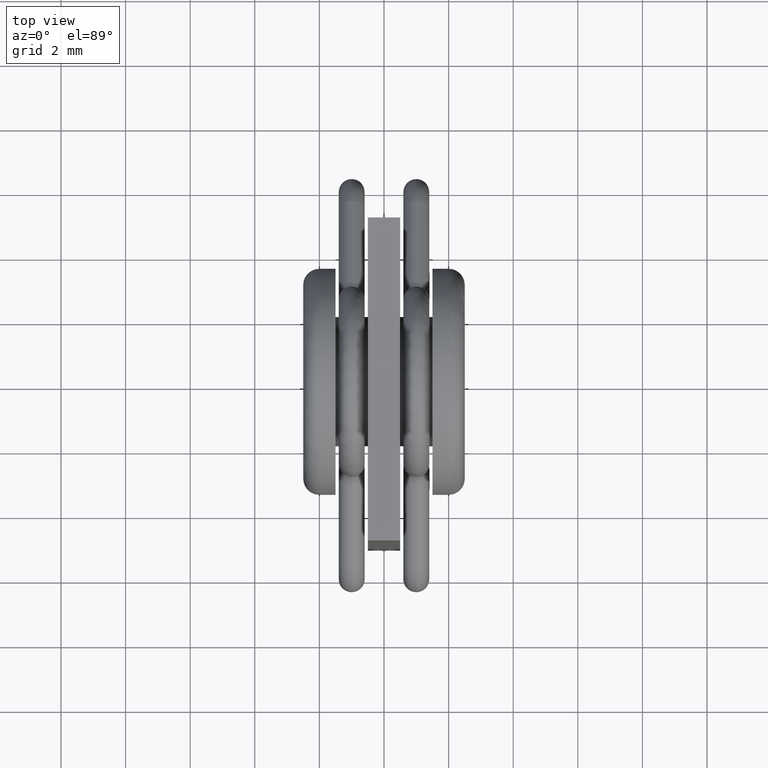
[diagram: clean part render]
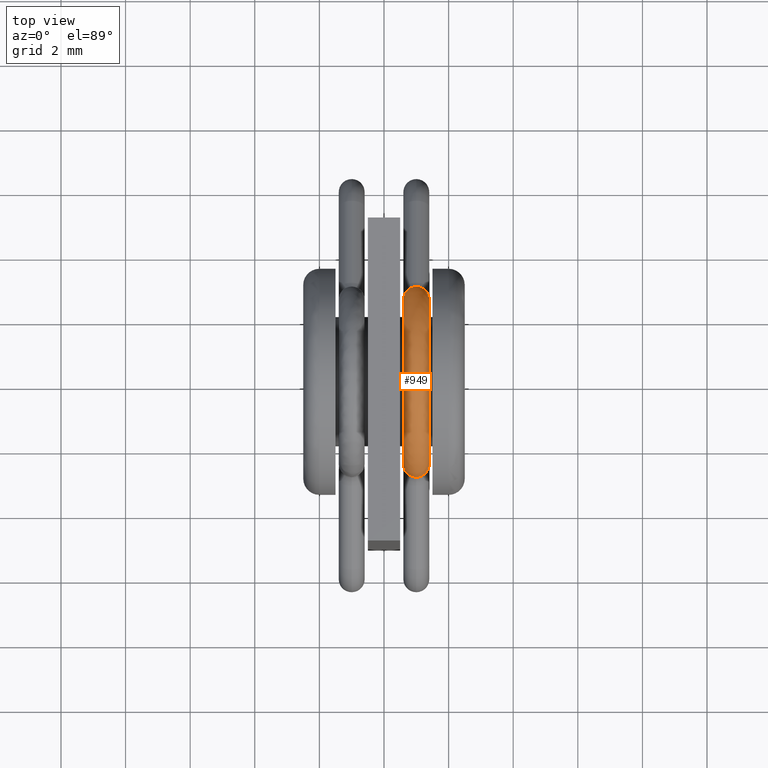
[diagram: same view with one face highlighted and labeled with its STEP entity id]
A machine part, top view. The second image highlights one B-rep face of the part: STEP entity #949.
In plain terms, the highlighted face is a freeform B-spline surface patch.
Its self-contained STEP definition (entity closure, byte-faithful):
#7 = CARTESIAN_POINT ( 'NONE',  ( 0.6000000000000010880, -1.693923247754989925, 13.45414849027615922 ) ) ;
#10 = B_SPLINE_CURVE_WITH_KNOTS ( 'NONE', 3,
 ( #2619, #1861, #913, #1659, #1383, #453 ),
 .UNSPECIFIED., .F., .F.,
 ( 4, 2, 4 ),
 ( 0.0006284202095626171278, 0.0009467790735410146642, 0.001265137937519412309 ),
 .UNSPECIFIED. ) ;
#22 = CARTESIAN_POINT ( 'NONE',  ( 0.5999999999999996447, 2.550000000000001155, 12.78414580212309026 ) ) ;
#40 = CARTESIAN_POINT ( 'NONE',  ( 0.5999999999999990896, 3.350000000000000977, 12.85609720141527923 ) ) ;
#46 = CARTESIAN_POINT ( 'NONE',  ( 1.399999999999999467, 2.227823959846286783, 14.28480567347927810 ) ) ;
#50 = CARTESIAN_POINT ( 'NONE',  ( 1.399999999999999467, 3.350000000000001865, 12.78414580212309204 ) ) ;
#59 = CARTESIAN_POINT ( 'NONE',  ( 1.399999999999999467, 2.545879930339979058, 13.16724665663082128 ) ) ;
#64 = CARTESIAN_POINT ( 'NONE',  ( 1.399999999999999467, 3.350000000000001865, 12.85609720141527923 ) ) ;
#84 = CARTESIAN_POINT ( 'NONE',  ( 0.6000000000000013101, -2.419553885554791783, 13.82226230502519648 ) ) ;
#91 = VERTEX_POINT ( 'NONE', #266 ) ;
#94 = CARTESIAN_POINT ( 'NONE',  ( 1.400000000000001243, -2.468288161014429605, 13.66175922868801251 ) ) ;
#98 = CARTESIAN_POINT ( 'NONE',  ( 1.400000000000001465, -3.242653074273759373, 13.86936996709986758 ) ) ;
#113 = CARTESIAN_POINT ( 'NONE',  ( 1.399999999999999467, 2.227823959846286783, 14.28480567347927810 ) ) ;
#129 = CARTESIAN_POINT ( 'NONE',  ( 0.6000000000000011990, -2.517196728838235753, 13.41615929504404825 ) ) ;
#131 = CARTESIAN_POINT ( 'NONE',  ( 1.399999999999999467, 2.550000000000002043, 12.85609720141527745 ) ) ;
#134 = CARTESIAN_POINT ( 'NONE',  ( 1.400000000000001243, -2.550007053976341975, 12.92804881173416121 ) ) ;
#176 = CARTESIAN_POINT ( 'NONE',  ( 0.5999999999999998668, 2.039149600807544260, 14.56709498333606234 ) ) ;
#187 = CARTESIAN_POINT ( 'NONE',  ( 1.399999999999999467, 2.517196728838232200, 13.41615929504400206 ) ) ;
#196 = CARTESIAN_POINT ( 'NONE',  ( 0.7904648936802521897, 2.906426318762784788, 12.95308795530054091 ) ) ;
#200 = ORIENTED_EDGE ( 'NONE', *, *, #1354, .F. ) ;
#201 = CARTESIAN_POINT ( 'NONE',  ( 1.400000000000001243, -2.468288161014429605, 13.66175922868801251 ) ) ;
#214 = CARTESIAN_POINT ( 'NONE',  ( 1.400000000000001243, -1.750000000000001554, 12.85609720141538048 ) ) ;
#228 = CARTESIAN_POINT ( 'NONE',  ( 0.6000000000000000888, 1.747172501213720475, 13.11477711729562934 ) ) ;
#237 = ORIENTED_EDGE ( 'NONE', *, *, #780, .T. ) ;
#243 = CARTESIAN_POINT ( 'NONE',  ( 0.6000000000000000888, 1.528898795972921221, 13.88172938376019516 ) ) ;
#255 = CARTESIAN_POINT ( 'NONE',  ( 0.6000000000000013101, -1.750000000000001554, 12.85609720141538048 ) ) ;
#263 = CARTESIAN_POINT ( 'NONE',  ( 1.400000000000001243, -2.549991795886024981, 13.08368269480378210 ) ) ;
#266 = CARTESIAN_POINT ( 'NONE',  ( 1.400000000000001243, -2.550000000000001155, 13.00000000000000178 ) ) ;
#269 = CARTESIAN_POINT ( 'NONE',  ( 1.400000000000001243, -1.528898795973100411, 13.88172938376082932 ) ) ;
#283 = CARTESIAN_POINT ( 'NONE',  ( 0.5999999999999993117, 3.323040949056754734, 13.43810805060969393 ) ) ;
#299 = CARTESIAN_POINT ( 'NONE',  ( 0.6000000000000016431, -3.350000000000000977, 12.85609720141538048 ) ) ;
#308 = CARTESIAN_POINT ( 'NONE',  ( 1.400000000000000133, -0.6675863731872332396, 15.55000000000115712 ) ) ;
#313 = B_SPLINE_CURVE_WITH_KNOTS ( 'NONE', 3,
 ( #860, #2592, #408, #2540, #1829, #1388, #2068, #2350, #176, #2559, #3079, #1339, #2319, #663, #1643, #2603, #2370, #129, #3096, #2881, #709, #1688 ),
 .UNSPECIFIED., .F., .F.,
 ( 4, 2, 2, 2, 2, 2, 2, 2, 2, 2, 4 ),
 ( -3.703112690096296887E-15, 0.03124999999997413874, 0.06249999999995197592, 0.1249999999999076572, 0.2499999999998190336, 0.4999999999996417310, 0.7499999999994645394, 0.8749999999993758326, 0.9374999999993315347, 0.9687499999993094413, 0.9999999999992872368 ),
 .UNSPECIFIED. ) ;
#315 = CARTESIAN_POINT ( 'NONE',  ( 1.399999999999999467, 2.926749123719651902, 14.68788196319836459 ) ) ;
#330 = CARTESIAN_POINT ( 'NONE',  ( 1.400000000000001243, -2.419553885554790895, 13.82226230502519648 ) ) ;
#334 = CARTESIAN_POINT ( 'NONE',  ( 0.6000000000000010880, -2.678882808903880530, 15.05873262516628230 ) ) ;
#352 = B_SPLINE_CURVE_WITH_KNOTS ( 'NONE', 3,
 ( #526, #1054, #59, #1731, #2460, #2220, #2738, #46, #1997, #1743, #2958, #308, #1019, #558, #2504, #330, #94, #1068, #2989, #2441, #263, #2207 ),
 .UNSPECIFIED., .F., .F.,
 ( 4, 2, 2, 2, 2, 2, 2, 2, 2, 2, 4 ),
 ( -1.545224709151703387E-15, 0.03124999999999862957, 0.06249999999999879957, 0.1249999999999991535, 0.2499999999999998335, 0.5000000000000012212, 0.7500000000000026645, 0.8750000000000033307, 0.9375000000000036637, 0.9687500000000037748, 1.000000000000003997 ),
 .UNSPECIFIED. ) ;
#380 = CARTESIAN_POINT ( 'NONE',  ( 1.400000000000001021, -2.039149600807420359, 14.56709498333546016 ) ) ;
#386 = CARTESIAN_POINT ( 'NONE',  ( 0.6000000000000015321, -2.550000000001543032, 13.00000000000575717 ) ) ;
#395 = CARTESIAN_POINT ( 'NONE',  ( 1.399999999999999467, 2.545879930339978170, 13.16724665663082305 ) ) ;
#401 = CARTESIAN_POINT ( 'NONE',  ( 0.7909841653094126235, -2.906926518334151943, 12.95302211533492276 ) ) ;
#408 = CARTESIAN_POINT ( 'NONE',  ( 0.5999999999999997558, 2.545879930339978170, 13.16724665663081417 ) ) ;
#436 = CARTESIAN_POINT ( 'NONE',  ( 1.400000000000001021, -2.039149600807420359, 14.56709498333546016 ) ) ;
#450 = CARTESIAN_POINT ( 'NONE',  ( 0.5999999999999996447, 2.549991795886097368, 13.08368269480378920 ) ) ;
#453 = CARTESIAN_POINT ( 'NONE',  ( 1.400000000000001243, -2.550000000000001155, 13.00000000000000178 ) ) ;
#461 = CARTESIAN_POINT ( 'NONE',  ( 0.5999999999999998668, 1.331067674462010686, 15.27517690940495854 ) ) ;
#474 = CARTESIAN_POINT ( 'NONE',  ( 1.400000000000000133, -0.4581475110107751658, 14.75000000000115818 ) ) ;
#490 = CARTESIAN_POINT ( 'NONE',  ( 1.400000000000001243, -1.660478156753226076, 13.56429766031139117 ) ) ;
#503 = CARTESIAN_POINT ( 'NONE',  ( 0.5999999999999996447, 2.517196728838267727, 13.41615929504400206 ) ) ;
#513 = CARTESIAN_POINT ( 'NONE',  ( 0.6000000000000015321, -2.926749123719649237, 14.68788196319920125 ) ) ;
#526 = CARTESIAN_POINT ( 'NONE',  ( 1.399999999999999467, 2.550000000000009148, 13.00000000000001066 ) ) ;
#529 = B_SPLINE_CURVE_WITH_KNOTS ( 'NONE', 3,
 ( #2324, #1411, #2372, #196, #1819, #2778 ),
 .UNSPECIFIED., .F., .F.,
 ( 4, 2, 4 ),
 ( -7.861450877188101911E-06, 0.0003062086350299563875, 0.0006202787209371008565 ),
 .UNSPECIFIED. ) ;
#532 = CARTESIAN_POINT ( 'NONE',  ( 0.6000000000000016431, -3.350009266988511758, 12.91676238393189635 ) ) ;
#546 = CARTESIAN_POINT ( 'NONE',  ( 1.399999999999999467, 3.349989222046436232, 13.09680935352849573 ) ) ;
#558 = CARTESIAN_POINT ( 'NONE',  ( 1.400000000000001021, -2.039149600807420359, 14.56709498333546016 ) ) ;
#563 = CARTESIAN_POINT ( 'NONE',  ( 1.400000000000001465, -1.748657533117180529, 15.98895790059223998 ) ) ;
#584 = CARTESIAN_POINT ( 'NONE',  ( 0.6000000000000016431, -3.349989222046363402, 13.09680935352849929 ) ) ;
#603 = CARTESIAN_POINT ( 'NONE',  ( 1.399999999999999467, 2.550000000000002043, 12.85609720141527745 ) ) ;
#614 = CARTESIAN_POINT ( 'NONE',  ( 1.399999999999999467, 2.517196728838232200, 13.41615929504400206 ) ) ;
#651 = CARTESIAN_POINT ( 'NONE',  ( 1.400000000000001243, -2.227823959846338742, 14.28480567348001529 ) ) ;
#663 = CARTESIAN_POINT ( 'NONE',  ( 0.6000000000000009770, -2.039149600807421248, 14.56709498333545838 ) ) ;
#673 = CARTESIAN_POINT ( 'NONE',  ( 1.400000000000000133, -0.6675863731872332396, 15.55000000000115712 ) ) ;
#689 = CARTESIAN_POINT ( 'NONE',  ( 0.5999999999999996447, 2.550000000000001155, 12.85609720141527745 ) ) ;
#702 = CARTESIAN_POINT ( 'NONE',  ( 0.5999999999999999778, 1.727487951163527935, 13.28559951620664670 ) ) ;
#709 = CARTESIAN_POINT ( 'NONE',  ( 0.6000000000000014211, -2.549991795885837131, 13.08368269480761548 ) ) ;
#716 = CARTESIAN_POINT ( 'NONE',  ( 0.6000000000000000888, 1.660478156753322443, 13.56429766031170026 ) ) ;
#737 = CARTESIAN_POINT ( 'NONE',  ( 1.400000000000000133, 1.528898795972922331, 13.88172938376019516 ) ) ;
#753 = CARTESIAN_POINT ( 'NONE',  ( 1.400000000000000799, -1.693923247755098727, 13.45414849027615922 ) ) ;
#765 = CARTESIAN_POINT ( 'NONE',  ( 0.5999999999999994227, 1.748657533116964924, 15.98895790059101252 ) ) ;
#777 = CARTESIAN_POINT ( 'NONE',  ( 0.5999999999999993117, 2.926749123719651458, 14.68788196319836459 ) ) ;
#780 = EDGE_CURVE ( 'NONE', #2839, #2467, #313, .T. ) ;
#796 = CARTESIAN_POINT ( 'NONE',  ( 0.6000000000000004219, -0.6675863731872341278, 15.55000000000115712 ) ) ;
#813 = CARTESIAN_POINT ( 'NONE',  ( 1.400000000000000133, -0.8770252353636912579, 16.35000000000115605 ) ) ;
#827 = ORIENTED_EDGE ( 'NONE', *, *, #1915, .T. ) ;
#829 = CARTESIAN_POINT ( 'NONE',  ( 0.6000000000000015321, -3.344587359466212106, 13.21971619596604874 ) ) ;
#850 = CARTESIAN_POINT ( 'NONE',  ( 1.400000000000001243, -2.549991795886024537, 13.08368269480380164 ) ) ;
#860 = CARTESIAN_POINT ( 'NONE',  ( 0.5999999999999996447, 2.549999999999999822, 12.99999999999999467 ) ) ;
#864 = CARTESIAN_POINT ( 'NONE',  ( 1.400000000000001243, -2.549991795886024537, 13.08368269480380164 ) ) ;
#878 = CARTESIAN_POINT ( 'NONE',  ( 1.400000000000000133, 0.6675863731872427875, 15.54999999999883897 ) ) ;
#903 = CARTESIAN_POINT ( 'NONE',  ( 1.400000000000001243, -2.550000000000001155, 12.85609720141537871 ) ) ;
#913 = CARTESIAN_POINT ( 'NONE',  ( 1.209500739106729617, -2.906440962441719567, 12.95308602758450967 ) ) ;
#926 = CARTESIAN_POINT ( 'NONE',  ( 1.399999999999999467, 2.227823959846286783, 14.28480567347927810 ) ) ;
#938 = CARTESIAN_POINT ( 'NONE',  ( 1.400000000000000799, -1.735916913686351037, 13.22886241449764455 ) ) ;
#949 = ADVANCED_FACE ( 'NONE', ( #1821 ), #1185, .F. ) ;
#954 = CARTESIAN_POINT ( 'NONE',  ( 1.399999999999999911, 1.750000000000002665, 12.78414580212309204 ) ) ;
#969 = CARTESIAN_POINT ( 'NONE',  ( 0.6000000000000000888, 0.9134778158070561149, 14.56139591821890811 ) ) ;
#982 = CARTESIAN_POINT ( 'NONE',  ( 1.399999999999999911, 1.750000000000002665, 12.85609720141527923 ) ) ;
#999 = CARTESIAN_POINT ( 'NONE',  ( 0.5999999999999996447, 2.550007053976279359, 12.92804881173416298 ) ) ;
#1012 = CARTESIAN_POINT ( 'NONE',  ( 0.6000000000000013101, -2.545879930339973729, 13.16724665663084970 ) ) ;
#1019 = CARTESIAN_POINT ( 'NONE',  ( 1.400000000000001021, -1.331067674462242278, 15.27517690940617356 ) ) ;
#1025 = CARTESIAN_POINT ( 'NONE',  ( 0.6000000000000014211, -2.550007053976341975, 12.92804881173416121 ) ) ;
#1041 = CARTESIAN_POINT ( 'NONE',  ( 0.6000000000000014211, -2.550000000000001155, 12.78414580212309026 ) ) ;
#1054 = CARTESIAN_POINT ( 'NONE',  ( 1.399999999999999911, 2.549991795886099144, 13.08368269480378210 ) ) ;
#1056 = CARTESIAN_POINT ( 'NONE',  ( 1.399999999999999467, 3.178629614356326627, 14.08022694973940858 ) ) ;
#1068 = CARTESIAN_POINT ( 'NONE',  ( 1.400000000000001243, -2.517196728838199782, 13.41615929504404825 ) ) ;
#1073 = CARTESIAN_POINT ( 'NONE',  ( 1.400000000000001465, -3.306905506512976878, 13.54671907388143204 ) ) ;
#1104 = CARTESIAN_POINT ( 'NONE',  ( 1.399999999999999467, 2.550007053976280247, 12.92804881173416298 ) ) ;
#1107 = CARTESIAN_POINT ( 'NONE',  ( 1.399999999999999467, 2.529478931371554218, 13.33348523255367368 ) ) ;
#1139 = CARTESIAN_POINT ( 'NONE',  ( 0.6423640136638857356, -2.757796280353714380, 12.97265167295111965 ) ) ;
#1142 = EDGE_CURVE ( 'NONE', #2272, #1239, #2925, .T. ) ;
#1149 = VERTEX_POINT ( 'NONE', #2916 ) ;
#1153 = CARTESIAN_POINT ( 'NONE',  ( 1.400000000000001243, -2.419553885554790895, 13.82226230502519648 ) ) ;
#1159 = CARTESIAN_POINT ( 'NONE',  ( 1.399999999999999467, 2.468288161014374094, 13.66175922868808001 ) ) ;
#1172 = CARTESIAN_POINT ( 'NONE',  ( 1.400000000000001243, -2.517196728838199782, 13.41615929504404825 ) ) ;
#1179 = CARTESIAN_POINT ( 'NONE',  ( 1.399999999999998579, 2.653728820469136718, 12.98634897153827694 ) ) ;
#1184 = CARTESIAN_POINT ( 'NONE',  ( 1.400000000000000799, -1.747172501213716478, 13.11477711729564888 ) ) ;
#1185 =( BOUNDED_SURFACE ( )  B_SPLINE_SURFACE ( 3, 3, ( 
 ( #2782, #603, #1362, #1395, #2359, #1107, #187, #1159, #2128, #926, #1886, #1586, #2846, #673, #2613, #436, #2307, #1415, #201, #1172, #2546, #3019, #850, #134, #2075, #3034 ),
 ( #954, #982, #1917, #1671, #2173, #2423, #2655, #1961, #2446, #737, #2861, #2390, #2672, #474, #2404, #3102, #269, #490, #753, #1468, #938, #1184, #2434, #1683, #214, #2631 ),
 ( #3133, #2155, #2886, #1926, #228, #1458, #702, #2876, #716, #243, #2642, #969, #1694, #1940, #2195, #1215, #1726, #2184, #7, #1440, #2901, #1203, #1712, #3117, #255, #1225 ),
 ( #22, #689, #999, #450, #2921, #2685, #503, #1897, #1481, #2142, #1428, #461, #1310, #796, #1256, #2695, #1496, #84, #1780, #2465, #2933, #1012, #1564, #1025, #1736, #1041 ),
 ( #1972, #40, #2713, #1983, #2944, #283, #1289, #2478, #1513, #777, #2258, #765, #1750, #1767, #2725, #334, #513, #1273, #1546, #2035, #2226, #829, #584, #532, #299, #2242 ),
 ( #50, #64, #2006, #546, #2994, #2962, #1529, #2495, #1056, #315, #2021, #2978, #2742, #813, #563, #2512, #2527, #2273, #98, #1073, #1800, #2763, #1240, #2212, #3060, #1613 ),
 ( #1830, #131, #1104, #1580, #395, #1597, #614, #3030, #1372, #113, #2070, #3040, #878, #2594, #2777, #380, #651, #1153, #2285, #3082, #2841, #2792, #864, #1358, #903, #2323 ) ),
 .UNSPECIFIED., .T., .F., .F. ) 
 B_SPLINE_SURFACE_WITH_KNOTS ( ( 4, 3, 4 ),
 ( 4, 2, 2, 2, 2, 2, 2, 2, 2, 2, 2, 2, 4 ),
 ( 0.000000000000000000, 0.5000000000000000000, 1.000000000000000000 ),
 ( -0.02686905146373682815, 0.000000000000000000, 0.03125000000000000000, 0.06250000000000000000, 0.1250000000000000000, 0.2500000000000000000, 0.5000000000000000000, 0.7500000000000000000, 0.8750000000000000000, 0.9375000000000000000, 0.9687500000000000000, 1.000000000000000000, 1.026869051463737748 ),
 .UNSPECIFIED. ) 
 GEOMETRIC_REPRESENTATION_ITEM ( )  RATIONAL_B_SPLINE_SURFACE ( (
 ( 1.000000000000000000, 1.000000000000000000, 1.000000000000000000, 1.000000000000000000, 1.000000000000000000, 1.000000000000000000, 1.000000000000000000, 1.000000000000000000, 1.000000000000000000, 1.000000000000000000, 1.000000000000000000, 1.000000000000000000, 1.000000000000000000, 1.000000000000000000, 1.000000000000000000, 1.000000000000000000, 1.000000000000000000, 1.000000000000000000, 1.000000000000000000, 1.000000000000000000, 1.000000000000000000, 1.000000000000000000, 1.000000000000000000, 1.000000000000000000, 1.000000000000000000, 1.000000000000000000),
 ( 0.3333333333333333703, 0.3333333333333333703, 0.3333333333333333703, 0.3333333333333333703, 0.3333333333333333703, 0.3333333333333333703, 0.3333333333333333703, 0.3333333333333333703, 0.3333333333333333703, 0.3333333333333333703, 0.3333333333333333703, 0.3333333333333333703, 0.3333333333333333703, 0.3333333333333333703, 0.3333333333333333703, 0.3333333333333333703, 0.3333333333333333703, 0.3333333333333333703, 0.3333333333333333703, 0.3333333333333333703, 0.3333333333333333703, 0.3333333333333333703, 0.3333333333333333703, 0.3333333333333333703, 0.3333333333333333703, 0.3333333333333333703),
 ( 0.3333333333333333703, 0.3333333333333333703, 0.3333333333333333703, 0.3333333333333333703, 0.3333333333333333703, 0.3333333333333333703, 0.3333333333333333703, 0.3333333333333333703, 0.3333333333333333703, 0.3333333333333333703, 0.3333333333333333703, 0.3333333333333333703, 0.3333333333333333703, 0.3333333333333333703, 0.3333333333333333703, 0.3333333333333333703, 0.3333333333333333703, 0.3333333333333333703, 0.3333333333333333703, 0.3333333333333333703, 0.3333333333333333703, 0.3333333333333333703, 0.3333333333333333703, 0.3333333333333333703, 0.3333333333333333703, 0.3333333333333333703),
 ( 1.000000000000000000, 1.000000000000000000, 1.000000000000000000, 1.000000000000000000, 1.000000000000000000, 1.000000000000000000, 1.000000000000000000, 1.000000000000000000, 1.000000000000000000, 1.000000000000000000, 1.000000000000000000, 1.000000000000000000, 1.000000000000000000, 1.000000000000000000, 1.000000000000000000, 1.000000000000000000, 1.000000000000000000, 1.000000000000000000, 1.000000000000000000, 1.000000000000000000, 1.000000000000000000, 1.000000000000000000, 1.000000000000000000, 1.000000000000000000, 1.000000000000000000, 1.000000000000000000),
 ( 0.3333333333333333703, 0.3333333333333333703, 0.3333333333333333703, 0.3333333333333333703, 0.3333333333333333703, 0.3333333333333333703, 0.3333333333333333703, 0.3333333333333333703, 0.3333333333333333703, 0.3333333333333333703, 0.3333333333333333703, 0.3333333333333333703, 0.3333333333333333703, 0.3333333333333333703, 0.3333333333333333703, 0.3333333333333333703, 0.3333333333333333703, 0.3333333333333333703, 0.3333333333333333703, 0.3333333333333333703, 0.3333333333333333703, 0.3333333333333333703, 0.3333333333333333703, 0.3333333333333333703, 0.3333333333333333703, 0.3333333333333333703),
 ( 0.3333333333333333703, 0.3333333333333333703, 0.3333333333333333703, 0.3333333333333333703, 0.3333333333333333703, 0.3333333333333333703, 0.3333333333333333703, 0.3333333333333333703, 0.3333333333333333703, 0.3333333333333333703, 0.3333333333333333703, 0.3333333333333333703, 0.3333333333333333703, 0.3333333333333333703, 0.3333333333333333703, 0.3333333333333333703, 0.3333333333333333703, 0.3333333333333333703, 0.3333333333333333703, 0.3333333333333333703, 0.3333333333333333703, 0.3333333333333333703, 0.3333333333333333703, 0.3333333333333333703, 0.3333333333333333703, 0.3333333333333333703),
 ( 1.000000000000000000, 1.000000000000000000, 1.000000000000000000, 1.000000000000000000, 1.000000000000000000, 1.000000000000000000, 1.000000000000000000, 1.000000000000000000, 1.000000000000000000, 1.000000000000000000, 1.000000000000000000, 1.000000000000000000, 1.000000000000000000, 1.000000000000000000, 1.000000000000000000, 1.000000000000000000, 1.000000000000000000, 1.000000000000000000, 1.000000000000000000, 1.000000000000000000, 1.000000000000000000, 1.000000000000000000, 1.000000000000000000, 1.000000000000000000, 1.000000000000000000, 1.000000000000000000) ) ) 
 REPRESENTATION_ITEM ( '' )  SURFACE ( )  );
#1197 = CARTESIAN_POINT ( 'NONE',  ( 1.357678076555738578, 2.757733919338726469, 12.97265988112446067 ) ) ;
#1203 = CARTESIAN_POINT ( 'NONE',  ( 0.6000000000000010880, -1.747172501213735574, 13.11477711729564888 ) ) ;
#1215 = CARTESIAN_POINT ( 'NONE',  ( 0.6000000000000009770, -1.399416392710959967, 14.07545734150463801 ) ) ;
#1225 = CARTESIAN_POINT ( 'NONE',  ( 0.6000000000000013101, -1.750000000000001554, 12.78414580212309204 ) ) ;
#1235 = EDGE_LOOP ( 'NONE', ( #2740, #237, #827, #2856, #200, #2141 ) ) ;
#1239 = VERTEX_POINT ( 'NONE', #1666 ) ;
#1240 = CARTESIAN_POINT ( 'NONE',  ( 1.400000000000001910, -3.349989222046363402, 13.09680935352849929 ) ) ;
#1256 = CARTESIAN_POINT ( 'NONE',  ( 0.6000000000000009770, -1.331067674462243167, 15.27517690940617356 ) ) ;
#1273 = CARTESIAN_POINT ( 'NONE',  ( 0.6000000000000015321, -3.178629614356319966, 14.08022694973900002 ) ) ;
#1289 = CARTESIAN_POINT ( 'NONE',  ( 0.5999999999999990896, 3.306905506513007520, 13.54671907388135743 ) ) ;
#1310 = CARTESIAN_POINT ( 'NONE',  ( 0.6000000000000004219, 0.6675863731872418994, 15.54999999999883897 ) ) ;
#1339 = CARTESIAN_POINT ( 'NONE',  ( 0.6000000000000004219, -0.6675863731872341278, 15.55000000000115712 ) ) ;
#1354 = EDGE_CURVE ( 'NONE', #1239, #91, #352, .T. ) ;
#1358 = CARTESIAN_POINT ( 'NONE',  ( 1.400000000000001243, -2.550007053976341975, 12.92804881173416121 ) ) ;
#1362 = CARTESIAN_POINT ( 'NONE',  ( 1.399999999999999467, 2.550007053976280247, 12.92804881173416298 ) ) ;
#1372 = CARTESIAN_POINT ( 'NONE',  ( 1.399999999999999467, 2.419553885554824202, 13.82226230502555353 ) ) ;
#1383 = CARTESIAN_POINT ( 'NONE',  ( 1.400000000000001243, -2.655217335070957141, 12.98615307848685596 ) ) ;
#1388 = CARTESIAN_POINT ( 'NONE',  ( 0.5999999999999996447, 2.468288161014300819, 13.66175922868808001 ) ) ;
#1395 = CARTESIAN_POINT ( 'NONE',  ( 1.399999999999999467, 2.549991795886098256, 13.08368269480378920 ) ) ;
#1411 = CARTESIAN_POINT ( 'NONE',  ( 0.5999999999999996447, 2.653799897548906106, 12.98633961758070932 ) ) ;
#1415 = CARTESIAN_POINT ( 'NONE',  ( 1.400000000000001243, -2.419553885554790895, 13.82226230502519648 ) ) ;
#1428 = CARTESIAN_POINT ( 'NONE',  ( 0.5999999999999998668, 2.039149600807544260, 14.56709498333606234 ) ) ;
#1440 = CARTESIAN_POINT ( 'NONE',  ( 0.6000000000000010880, -1.727487951163475310, 13.28559951620666801 ) ) ;
#1458 = CARTESIAN_POINT ( 'NONE',  ( 0.6000000000000000888, 1.735916913686352370, 13.22886241449764988 ) ) ;
#1468 = CARTESIAN_POINT ( 'NONE',  ( 1.400000000000000799, -1.727487951163421354, 13.28559951620666801 ) ) ;
#1481 = CARTESIAN_POINT ( 'NONE',  ( 0.5999999999999997558, 2.419553885554824202, 13.82226230502555353 ) ) ;
#1496 = CARTESIAN_POINT ( 'NONE',  ( 0.6000000000000013101, -2.227823959846339630, 14.28480567348001529 ) ) ;
#1513 = CARTESIAN_POINT ( 'NONE',  ( 0.5999999999999993117, 3.178629614356325739, 14.08022694973940858 ) ) ;
#1529 = CARTESIAN_POINT ( 'NONE',  ( 1.399999999999999245, 3.306905506512989312, 13.54671907388135743 ) ) ;
#1546 = CARTESIAN_POINT ( 'NONE',  ( 0.6000000000000014211, -3.242653074273723401, 13.86936996709986758 ) ) ;
#1564 = CARTESIAN_POINT ( 'NONE',  ( 0.6000000000000014211, -2.549991795886024537, 13.08368269480380164 ) ) ;
#1580 = CARTESIAN_POINT ( 'NONE',  ( 1.399999999999999467, 2.549991795886098256, 13.08368269480378920 ) ) ;
#1586 = CARTESIAN_POINT ( 'NONE',  ( 1.399999999999999689, 1.331067674462011352, 15.27517690940495854 ) ) ;
#1597 = CARTESIAN_POINT ( 'NONE',  ( 1.399999999999999467, 2.529478931371554218, 13.33348523255367368 ) ) ;
#1613 = CARTESIAN_POINT ( 'NONE',  ( 1.400000000000001910, -3.350000000000000977, 12.78414580212309204 ) ) ;
#1637 = CARTESIAN_POINT ( 'NONE',  ( 0.8953535829243045585, -2.950003356577420632, 12.94735152788251042 ) ) ;
#1643 = CARTESIAN_POINT ( 'NONE',  ( 0.6000000000000013101, -2.227823959846339630, 14.28480567348001529 ) ) ;
#1659 = CARTESIAN_POINT ( 'NONE',  ( 1.357154942148883103, -2.758277962741888523, 12.97258827055907382 ) ) ;
#1666 = CARTESIAN_POINT ( 'NONE',  ( 1.399999999999999467, 2.550000000000009148, 13.00000000000001066 ) ) ;
#1671 = CARTESIAN_POINT ( 'NONE',  ( 1.399999999999999911, 1.749994369725759835, 13.07055603607908267 ) ) ;
#1678 = CARTESIAN_POINT ( 'NONE',  ( 1.209049917906913629, 2.906912434163042569, 12.95302396940759770 ) ) ;
#1683 = CARTESIAN_POINT ( 'NONE',  ( 1.400000000000001243, -1.750004840964172415, 12.93933523953642784 ) ) ;
#1688 = CARTESIAN_POINT ( 'NONE',  ( 0.6000000000000015321, -2.550000000001543032, 13.00000000000575717 ) ) ;
#1690 = CARTESIAN_POINT ( 'NONE',  ( 1.399999999999999467, 2.550000000000009148, 13.00000000000001066 ) ) ;
#1694 = CARTESIAN_POINT ( 'NONE',  ( 0.6000000000000004219, 0.4581475110107837145, 14.74999999999884004 ) ) ;
#1712 = CARTESIAN_POINT ( 'NONE',  ( 0.6000000000000013101, -1.749994369725686116, 13.07055603607910577 ) ) ;
#1726 = CARTESIAN_POINT ( 'NONE',  ( 0.6000000000000013101, -1.528898795973029578, 13.88172938376082932 ) ) ;
#1731 = CARTESIAN_POINT ( 'NONE',  ( 1.399999999999999467, 2.529478931371554218, 13.33348523255367368 ) ) ;
#1736 = CARTESIAN_POINT ( 'NONE',  ( 0.6000000000000014211, -2.550000000000001155, 12.85609720141537871 ) ) ;
#1743 = CARTESIAN_POINT ( 'NONE',  ( 1.399999999999999689, 1.331067674462011352, 15.27517690940495854 ) ) ;
#1750 = CARTESIAN_POINT ( 'NONE',  ( 0.6000000000000003109, 0.8770252353636999176, 16.34999999999883613 ) ) ;
#1767 = CARTESIAN_POINT ( 'NONE',  ( 0.6000000000000003109, -0.8770252353636921461, 16.35000000000115605 ) ) ;
#1780 = CARTESIAN_POINT ( 'NONE',  ( 0.6000000000000011990, -2.468288161014357218, 13.66175922868801251 ) ) ;
#1800 = CARTESIAN_POINT ( 'NONE',  ( 1.400000000000001465, -3.323040949056754290, 13.43810805060968150 ) ) ;
#1819 = CARTESIAN_POINT ( 'NONE',  ( 0.8952639853796515723, 2.950003356577393543, 12.94735152788241095 ) ) ;
#1821 = FACE_OUTER_BOUND ( 'NONE', #1235, .T. ) ;
#1829 = CARTESIAN_POINT ( 'NONE',  ( 0.5999999999999996447, 2.517196728838267727, 13.41615929504400206 ) ) ;
#1830 = CARTESIAN_POINT ( 'NONE',  ( 1.399999999999999467, 2.550000000000002043, 12.78414580212309026 ) ) ;
#1852 = CARTESIAN_POINT ( 'NONE',  ( 1.000000000000004219, -2.950003356577420188, 12.94735152788250865 ) ) ;
#1861 = CARTESIAN_POINT ( 'NONE',  ( 1.104718135162353843, -2.950003356577420188, 12.94735152788251042 ) ) ;
#1886 = CARTESIAN_POINT ( 'NONE',  ( 1.399999999999999689, 2.039149600807544704, 14.56709498333606234 ) ) ;
#1897 = CARTESIAN_POINT ( 'NONE',  ( 0.5999999999999996447, 2.468288161014300819, 13.66175922868808001 ) ) ;
#1912 = CARTESIAN_POINT ( 'NONE',  ( 1.104664296533818257, 2.950003356577395763, 12.94735152788240740 ) ) ;
#1915 = EDGE_CURVE ( 'NONE', #2467, #1149, #3119, .T. ) ;
#1917 = CARTESIAN_POINT ( 'NONE',  ( 1.399999999999999911, 1.750004840964110464, 12.93933523953643849 ) ) ;
#1926 = CARTESIAN_POINT ( 'NONE',  ( 0.6000000000000000888, 1.749994369725758725, 13.07055603607908267 ) ) ;
#1940 = CARTESIAN_POINT ( 'NONE',  ( 0.6000000000000004219, -0.4581475110107759985, 14.75000000000115818 ) ) ;
#1961 = CARTESIAN_POINT ( 'NONE',  ( 1.399999999999999911, 1.693923247755002803, 13.45414849027617521 ) ) ;
#1972 = CARTESIAN_POINT ( 'NONE',  ( 0.5999999999999990896, 3.350000000000000977, 12.78414580212309204 ) ) ;
#1983 = CARTESIAN_POINT ( 'NONE',  ( 0.5999999999999990896, 3.349989222046435344, 13.09680935352849573 ) ) ;
#1997 = CARTESIAN_POINT ( 'NONE',  ( 1.399999999999999689, 2.039149600807544704, 14.56709498333606234 ) ) ;
#2006 = CARTESIAN_POINT ( 'NONE',  ( 1.399999999999999467, 3.350009266988449586, 12.91676238393189102 ) ) ;
#2021 = CARTESIAN_POINT ( 'NONE',  ( 1.399999999999999467, 2.678882808903960466, 15.05873262516689515 ) ) ;
#2035 = CARTESIAN_POINT ( 'NONE',  ( 0.6000000000000014211, -3.306905506512994641, 13.54671907388143204 ) ) ;
#2068 = CARTESIAN_POINT ( 'NONE',  ( 0.5999999999999997558, 2.419553885554824202, 13.82226230502555353 ) ) ;
#2070 = CARTESIAN_POINT ( 'NONE',  ( 1.399999999999999689, 2.039149600807544704, 14.56709498333606234 ) ) ;
#2075 = CARTESIAN_POINT ( 'NONE',  ( 1.400000000000001243, -2.550000000000001155, 12.85609720141537871 ) ) ;
#2109 = CARTESIAN_POINT ( 'NONE',  ( 0.6000000000000016431, -2.655145275089607626, 12.98616256172633676 ) ) ;
#2128 = CARTESIAN_POINT ( 'NONE',  ( 1.399999999999999467, 2.419553885554824202, 13.82226230502555353 ) ) ;
#2141 = ORIENTED_EDGE ( 'NONE', *, *, #1142, .F. ) ;
#2142 = CARTESIAN_POINT ( 'NONE',  ( 0.5999999999999997558, 2.227823959846286339, 14.28480567347927810 ) ) ;
#2155 = CARTESIAN_POINT ( 'NONE',  ( 0.6000000000000000888, 1.750000000000001554, 12.85609720141527923 ) ) ;
#2159 = CARTESIAN_POINT ( 'NONE',  ( 0.5999999999999996447, 2.549999999999999822, 12.99999999999999467 ) ) ;
#2173 = CARTESIAN_POINT ( 'NONE',  ( 1.399999999999999911, 1.747172501213721141, 13.11477711729562934 ) ) ;
#2184 = CARTESIAN_POINT ( 'NONE',  ( 0.6000000000000013101, -1.660478156753263157, 13.56429766031139117 ) ) ;
#2195 = CARTESIAN_POINT ( 'NONE',  ( 0.6000000000000009770, -0.9134778158074491339, 14.56139591822010537 ) ) ;
#2207 = CARTESIAN_POINT ( 'NONE',  ( 1.400000000000001243, -2.550000000000001155, 13.00000000000000178 ) ) ;
#2212 = CARTESIAN_POINT ( 'NONE',  ( 1.400000000000001910, -3.350009266988511758, 12.91676238393189635 ) ) ;
#2220 = CARTESIAN_POINT ( 'NONE',  ( 1.399999999999999467, 2.468288161014374094, 13.66175922868808001 ) ) ;
#2226 = CARTESIAN_POINT ( 'NONE',  ( 0.6000000000000015321, -3.323040949056772941, 13.43810805060967795 ) ) ;
#2242 = CARTESIAN_POINT ( 'NONE',  ( 0.6000000000000016431, -3.350000000000000977, 12.78414580212309204 ) ) ;
#2258 = CARTESIAN_POINT ( 'NONE',  ( 0.5999999999999994227, 2.678882808903923607, 15.05873262516689515 ) ) ;
#2272 = VERTEX_POINT ( 'NONE', #3014 ) ;
#2273 = CARTESIAN_POINT ( 'NONE',  ( 1.400000000000001465, -3.178629614356356381, 14.08022694973900002 ) ) ;
#2285 = CARTESIAN_POINT ( 'NONE',  ( 1.400000000000001243, -2.468288161014429605, 13.66175922868801251 ) ) ;
#2307 = CARTESIAN_POINT ( 'NONE',  ( 1.400000000000001243, -2.227823959846338742, 14.28480567348001529 ) ) ;
#2319 = CARTESIAN_POINT ( 'NONE',  ( 0.6000000000000009770, -1.331067674462243167, 15.27517690940617356 ) ) ;
#2323 = CARTESIAN_POINT ( 'NONE',  ( 1.400000000000001243, -2.550000000000001155, 12.78414580212309026 ) ) ;
#2324 = CARTESIAN_POINT ( 'NONE',  ( 0.5999999999999996447, 2.549999999999999822, 12.99999999999999467 ) ) ;
#2350 = CARTESIAN_POINT ( 'NONE',  ( 0.5999999999999997558, 2.227823959846286339, 14.28480567347927810 ) ) ;
#2359 = CARTESIAN_POINT ( 'NONE',  ( 1.399999999999999467, 2.545879930339978170, 13.16724665663082305 ) ) ;
#2370 = CARTESIAN_POINT ( 'NONE',  ( 0.6000000000000011990, -2.468288161014357218, 13.66175922868801251 ) ) ;
#2372 = CARTESIAN_POINT ( 'NONE',  ( 0.6428037988113329826, 2.758216709405811873, 12.97259633293495362 ) ) ;
#2385 = CARTESIAN_POINT ( 'NONE',  ( 0.9999999999999970024, 2.950003356577393987, 12.94735152788240917 ) ) ;
#2390 = CARTESIAN_POINT ( 'NONE',  ( 1.400000000000000133, 0.9134778158071293896, 14.56139591821890811 ) ) ;
#2404 = CARTESIAN_POINT ( 'NONE',  ( 1.400000000000000799, -0.9134778158073045828, 14.56139591822010537 ) ) ;
#2423 = CARTESIAN_POINT ( 'NONE',  ( 1.399999999999999911, 1.735916913686353036, 13.22886241449764988 ) ) ;
#2434 = CARTESIAN_POINT ( 'NONE',  ( 1.400000000000001243, -1.749994369725686116, 13.07055603607910577 ) ) ;
#2441 = CARTESIAN_POINT ( 'NONE',  ( 1.400000000000001021, -2.545879930339973729, 13.16724665663083726 ) ) ;
#2446 = CARTESIAN_POINT ( 'NONE',  ( 1.400000000000000133, 1.660478156753323109, 13.56429766031170026 ) ) ;
#2460 = CARTESIAN_POINT ( 'NONE',  ( 1.399999999999999467, 2.517196728838232200, 13.41615929504400206 ) ) ;
#2465 = CARTESIAN_POINT ( 'NONE',  ( 0.6000000000000011990, -2.517196728838235753, 13.41615929504404825 ) ) ;
#2467 = VERTEX_POINT ( 'NONE', #2578 ) ;
#2478 = CARTESIAN_POINT ( 'NONE',  ( 0.5999999999999990896, 3.242653074273708302, 13.86936996709998660 ) ) ;
#2495 = CARTESIAN_POINT ( 'NONE',  ( 1.399999999999999245, 3.242653074273744718, 13.86936996709998660 ) ) ;
#2504 = CARTESIAN_POINT ( 'NONE',  ( 1.400000000000001243, -2.227823959846338742, 14.28480567348001529 ) ) ;
#2512 = CARTESIAN_POINT ( 'NONE',  ( 1.400000000000001465, -2.678882808903808144, 15.05873262516628230 ) ) ;
#2527 = CARTESIAN_POINT ( 'NONE',  ( 1.400000000000001465, -2.926749123719576851, 14.68788196319920125 ) ) ;
#2540 = CARTESIAN_POINT ( 'NONE',  ( 0.5999999999999997558, 2.529478931371553330, 13.33348523255367368 ) ) ;
#2546 = CARTESIAN_POINT ( 'NONE',  ( 1.400000000000001021, -2.529478931371552441, 13.33348523255366125 ) ) ;
#2559 = CARTESIAN_POINT ( 'NONE',  ( 0.5999999999999998668, 1.331067674462010686, 15.27517690940495854 ) ) ;
#2578 = CARTESIAN_POINT ( 'NONE',  ( 0.6000000000000015321, -2.550000000001543032, 13.00000000000575717 ) ) ;
#2592 = CARTESIAN_POINT ( 'NONE',  ( 0.5999999999999996447, 2.549991795886098256, 13.08368269480377144 ) ) ;
#2594 = CARTESIAN_POINT ( 'NONE',  ( 1.400000000000000133, -0.6675863731872332396, 15.55000000000115712 ) ) ;
#2596 = EDGE_CURVE ( 'NONE', #2839, #2272, #529, .T. ) ;
#2603 = CARTESIAN_POINT ( 'NONE',  ( 0.6000000000000013101, -2.419553885554791783, 13.82226230502519648 ) ) ;
#2613 = CARTESIAN_POINT ( 'NONE',  ( 1.400000000000001021, -1.331067674462242278, 15.27517690940617356 ) ) ;
#2619 = CARTESIAN_POINT ( 'NONE',  ( 1.000000000000004219, -2.950003356577420188, 12.94735152788250865 ) ) ;
#2631 = CARTESIAN_POINT ( 'NONE',  ( 1.400000000000001243, -1.750000000000001554, 12.78414580212309204 ) ) ;
#2642 = CARTESIAN_POINT ( 'NONE',  ( 0.6000000000000000888, 1.399416392711164248, 14.07545734150523309 ) ) ;
#2655 = CARTESIAN_POINT ( 'NONE',  ( 1.399999999999999911, 1.727487951163474200, 13.28559951620664670 ) ) ;
#2672 = CARTESIAN_POINT ( 'NONE',  ( 1.400000000000000133, 0.4581475110107846582, 14.74999999999884004 ) ) ;
#2685 = CARTESIAN_POINT ( 'NONE',  ( 0.5999999999999997558, 2.529478931371553330, 13.33348523255367368 ) ) ;
#2695 = CARTESIAN_POINT ( 'NONE',  ( 0.6000000000000009770, -2.039149600807421248, 14.56709498333545838 ) ) ;
#2713 = CARTESIAN_POINT ( 'NONE',  ( 0.5999999999999990896, 3.350009266988449141, 12.91676238393189102 ) ) ;
#2725 = CARTESIAN_POINT ( 'NONE',  ( 0.6000000000000010880, -1.748657533117035534, 15.98895790059223998 ) ) ;
#2738 = CARTESIAN_POINT ( 'NONE',  ( 1.399999999999999467, 2.419553885554824202, 13.82226230502555353 ) ) ;
#2740 = ORIENTED_EDGE ( 'NONE', *, *, #2596, .F. ) ;
#2742 = CARTESIAN_POINT ( 'NONE',  ( 1.400000000000000133, 0.8770252353637008058, 16.34999999999883613 ) ) ;
#2763 = CARTESIAN_POINT ( 'NONE',  ( 1.400000000000001465, -3.344587359466229870, 13.21971619596604697 ) ) ;
#2777 = CARTESIAN_POINT ( 'NONE',  ( 1.400000000000001021, -1.331067674462242278, 15.27517690940617356 ) ) ;
#2778 = CARTESIAN_POINT ( 'NONE',  ( 0.9999999999999970024, 2.950003356577393987, 12.94735152788240917 ) ) ;
#2782 = CARTESIAN_POINT ( 'NONE',  ( 1.399999999999999467, 2.550000000000002043, 12.78414580212309026 ) ) ;
#2792 = CARTESIAN_POINT ( 'NONE',  ( 1.400000000000001021, -2.545879930339972841, 13.16724665663084970 ) ) ;
#2839 = VERTEX_POINT ( 'NONE', #2159 ) ;
#2841 = CARTESIAN_POINT ( 'NONE',  ( 1.400000000000001021, -2.529478931371552441, 13.33348523255366125 ) ) ;
#2846 = CARTESIAN_POINT ( 'NONE',  ( 1.400000000000000133, 0.6675863731872427875, 15.54999999999883897 ) ) ;
#2856 = ORIENTED_EDGE ( 'NONE', *, *, #2909, .T. ) ;
#2861 = CARTESIAN_POINT ( 'NONE',  ( 1.400000000000000133, 1.399416392711129165, 14.07545734150523309 ) ) ;
#2876 = CARTESIAN_POINT ( 'NONE',  ( 0.5999999999999999778, 1.693923247754893335, 13.45414849027617521 ) ) ;
#2881 = CARTESIAN_POINT ( 'NONE',  ( 0.6000000000000013101, -2.545879930339787212, 13.16724665663274330 ) ) ;
#2886 = CARTESIAN_POINT ( 'NONE',  ( 0.6000000000000000888, 1.750004840964110242, 12.93933523953643849 ) ) ;
#2901 = CARTESIAN_POINT ( 'NONE',  ( 0.6000000000000010880, -1.735916913686333274, 13.22886241449764455 ) ) ;
#2909 = EDGE_CURVE ( 'NONE', #1149, #91, #10, .T. ) ;
#2916 = CARTESIAN_POINT ( 'NONE',  ( 1.000000000000004219, -2.950003356577420188, 12.94735152788250865 ) ) ;
#2921 = CARTESIAN_POINT ( 'NONE',  ( 0.5999999999999997558, 2.545879930339977282, 13.16724665663082305 ) ) ;
#2925 = B_SPLINE_CURVE_WITH_KNOTS ( 'NONE', 3,
 ( #2385, #1912, #1678, #1197, #1179, #1690 ),
 .UNSPECIFIED., .F., .F.,
 ( 4, 2, 4 ),
 ( 0.0006202787209371008565, 0.0009341337470515163194, 0.001247988773165931891 ),
 .UNSPECIFIED. ) ;
#2933 = CARTESIAN_POINT ( 'NONE',  ( 0.6000000000000013101, -2.529478931371553330, 13.33348523255366125 ) ) ;
#2944 = CARTESIAN_POINT ( 'NONE',  ( 0.5999999999999993117, 3.344587359466233867, 13.21971619596601677 ) ) ;
#2958 = CARTESIAN_POINT ( 'NONE',  ( 1.400000000000000133, 0.6675863731872427875, 15.54999999999883897 ) ) ;
#2962 = CARTESIAN_POINT ( 'NONE',  ( 1.399999999999999245, 3.323040949056755622, 13.43810805060969393 ) ) ;
#2978 = CARTESIAN_POINT ( 'NONE',  ( 1.399999999999999467, 1.748657533116892759, 15.98895790059101252 ) ) ;
#2989 = CARTESIAN_POINT ( 'NONE',  ( 1.400000000000001021, -2.529478931371552441, 13.33348523255366125 ) ) ;
#2994 = CARTESIAN_POINT ( 'NONE',  ( 1.399999999999999245, 3.344587359466234755, 13.21971619596601677 ) ) ;
#3014 = CARTESIAN_POINT ( 'NONE',  ( 0.9999999999999970024, 2.950003356577393987, 12.94735152788240917 ) ) ;
#3019 = CARTESIAN_POINT ( 'NONE',  ( 1.400000000000001021, -2.545879930339972841, 13.16724665663084970 ) ) ;
#3030 = CARTESIAN_POINT ( 'NONE',  ( 1.399999999999999467, 2.468288161014374094, 13.66175922868808001 ) ) ;
#3034 = CARTESIAN_POINT ( 'NONE',  ( 1.400000000000001243, -2.550000000000001155, 12.78414580212309026 ) ) ;
#3040 = CARTESIAN_POINT ( 'NONE',  ( 1.399999999999999689, 1.331067674462011352, 15.27517690940495854 ) ) ;
#3060 = CARTESIAN_POINT ( 'NONE',  ( 1.400000000000001910, -3.350000000000000977, 12.85609720141538048 ) ) ;
#3079 = CARTESIAN_POINT ( 'NONE',  ( 0.6000000000000004219, 0.6675863731872418994, 15.54999999999883897 ) ) ;
#3082 = CARTESIAN_POINT ( 'NONE',  ( 1.400000000000001243, -2.517196728838199782, 13.41615929504404825 ) ) ;
#3096 = CARTESIAN_POINT ( 'NONE',  ( 0.6000000000000013101, -2.529478931371553330, 13.33348523255366125 ) ) ;
#3102 = CARTESIAN_POINT ( 'NONE',  ( 1.400000000000000799, -1.399416392711032131, 14.07545734150463801 ) ) ;
#3117 = CARTESIAN_POINT ( 'NONE',  ( 0.6000000000000013101, -1.750004840964172415, 12.93933523953642784 ) ) ;
#3119 = B_SPLINE_CURVE_WITH_KNOTS ( 'NONE', 3,
 ( #386, #2109, #1139, #401, #1637, #1852 ),
 .UNSPECIFIED., .F., .F.,
 ( 4, 2, 4 ),
 ( -7.861450877174649333E-06, 0.0003102793793427212452, 0.0006284202095626171278 ),
 .UNSPECIFIED. ) ;
#3133 = CARTESIAN_POINT ( 'NONE',  ( 0.6000000000000000888, 1.750000000000001554, 12.78414580212309204 ) ) ;